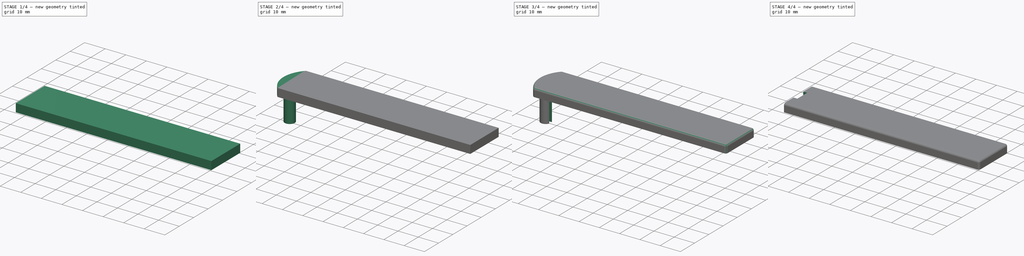
[diagram: build sequence overview — one tinted view per stage of 4, left to right]
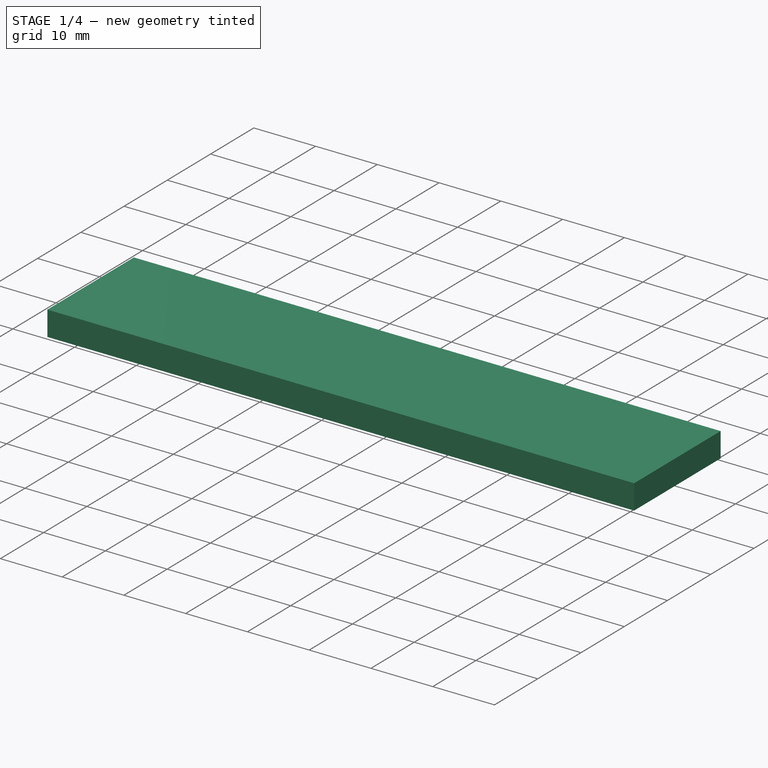
[diagram: stage 1 of 4 — iso view after this stage's code; geometry added in this stage tinted green]
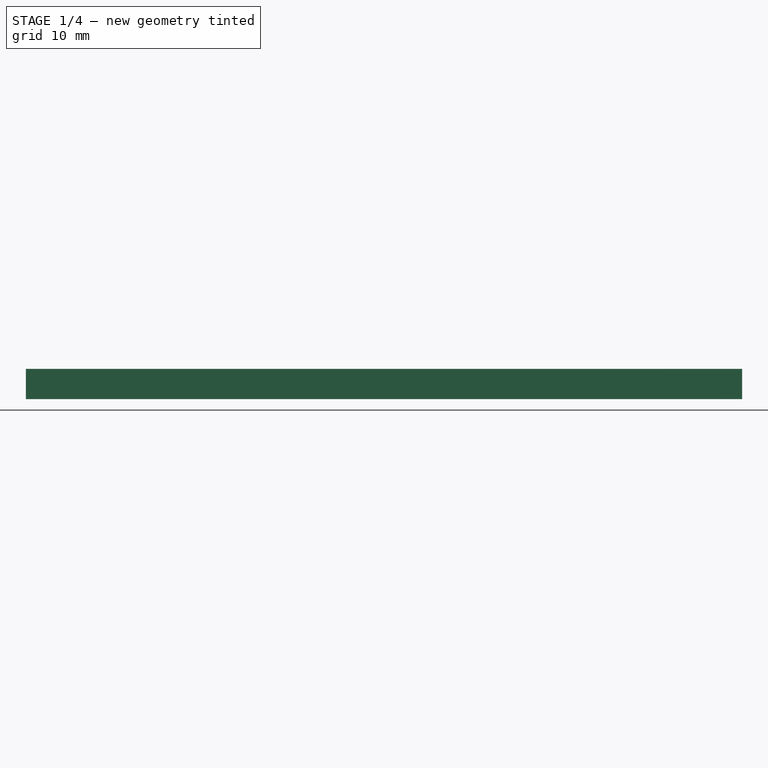
[diagram: stage 1 of 4 — front view after this stage's code; geometry added in this stage tinted green]
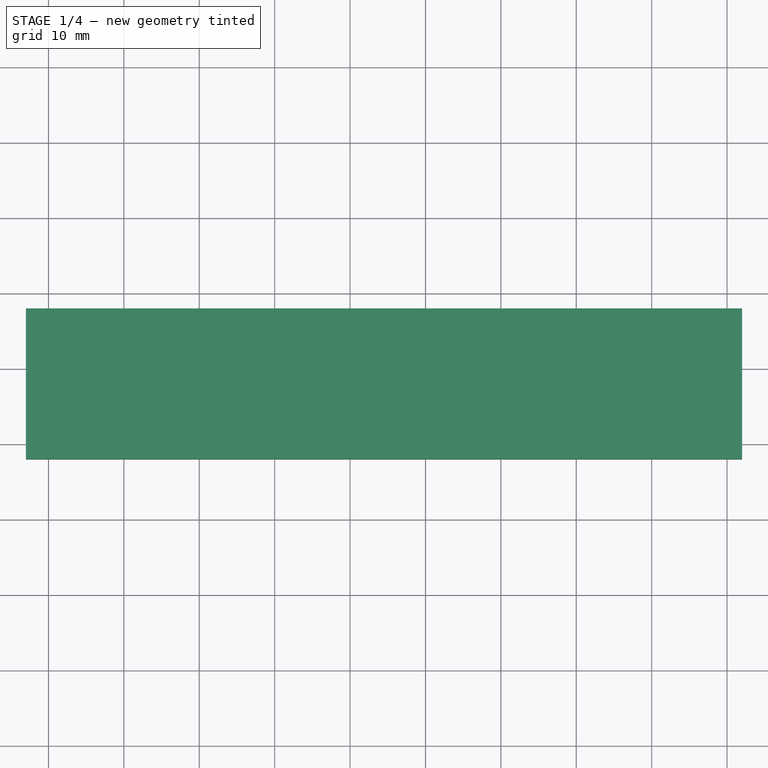
[diagram: stage 1 of 4 — top view after this stage's code; geometry added in this stage tinted green]
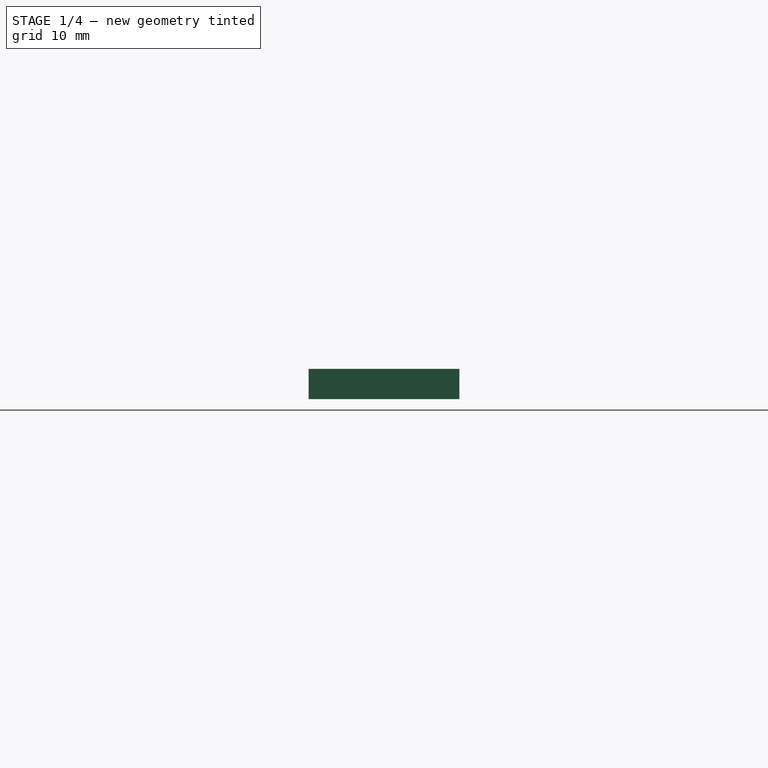
[diagram: stage 1 of 4 — right view after this stage's code; geometry added in this stage tinted green]
FCSTD DOCUMENT  (FreeCAD 0.18.1R)
Label: antenna_enclosure_1
License: All rights reserved
LicenseURL: http://en.wikipedia.org/wiki/All_rights_reserved
objects: Sketcher::SketchObject×7, PartDesign::Pad×4, PartDesign::Pocket×3, PartDesign::Fillet×2, PartDesign::Body×1
note: 24 computed .brp shape members not serialized (recipe doc carries the construction recipe); baked Part::Feature solids carry a one-line shape summary decoded from their .brp

FEATURE [Sketcher::SketchObject] Sketch
  MapMode = 5
  Support = -> [XY_Plane]
  sketch-geometry (8):
    g0: LineSegment StartX=-93 StartY=18 StartZ=0 EndX=2 EndY=18 EndZ=0
    g1: LineSegment StartX=2 StartY=18 StartZ=0 EndX=2 EndY=-2 EndZ=0
    g2: LineSegment StartX=2 StartY=-2 StartZ=0 EndX=-93 EndY=-2 EndZ=0
    g3: LineSegment StartX=-93 StartY=-2 StartZ=0 EndX=-93 EndY=18 EndZ=0
    g4: LineSegment StartX=-91 StartY=16 StartZ=0 EndX=0 EndY=16 EndZ=0
    g5: LineSegment StartX=0 StartY=16 StartZ=0 EndX=0 EndY=0 EndZ=0
    g6: LineSegment StartX=0 StartY=0 StartZ=0 EndX=-91 EndY=0 EndZ=0
    g7: LineSegment StartX=-91 StartY=0 StartZ=0 EndX=-91 EndY=16 EndZ=0
  constraints (23):
    c: Coincident(g0,g1)
    c: Coincident(g1,g2)
    c: Coincident(g2,g3)
    c: Coincident(g3,g0)
    c: Horizontal(g0)
    c: Horizontal(g2)
    c: Vertical(g1)
    c: Vertical(g3)
    c: Coincident(g4,g5)
    c: Coincident(g5,g6)
    c: Coincident(g6,g7)
    c: Coincident(g7,g4)
    c: Horizontal(g4)
    c: Horizontal(g6)
    c: Vertical(g5)
    c: Vertical(g7)
    c: Coincident(g5,g-1)
    c: Distance(g0) = 95
    c: Distance(g7) = 16
    c: DistanceX(g4,g0) = 2
    c: DistanceX(g2,g6) = 2
    c: DistanceY(g4,g0) = 2
    c: DistanceY(g2,g6) = 2
FEATURE [PartDesign::Pad] Pad
  Length = 2
  Length2 = 100
  Profile = -> Sketch
  Type = 0
FEATURE [Sketcher::SketchObject] Sketch001
  ExternalGeometry = -> [Pad]
  MapMode = 5
  Placement = pos=(0,0,2) rot=(0,0,1;0rad)
  Support = -> [Pad]
  sketch-geometry (4):
    g0: LineSegment StartX=-93 StartY=18 StartZ=0 EndX=2 EndY=18 EndZ=0
    g1: LineSegment StartX=2 StartY=18 StartZ=0 EndX=2 EndY=-2 EndZ=0
    g2: LineSegment StartX=2 StartY=-2 StartZ=0 EndX=-93 EndY=-2 EndZ=0
    g3: LineSegment StartX=-93 StartY=-2 StartZ=0 EndX=-93 EndY=18 EndZ=0
  constraints (10):
    c: Coincident(g0,g1)
    c: Coincident(g1,g2)
    c: Coincident(g2,g3)
    c: Coincident(g3,g0)
    c: Horizontal(g0)
    c: Horizontal(g2)
    c: Vertical(g1)
    c: Vertical(g3)
    c: Coincident(g0,g-6)
    c: Coincident(g1,g-5)
FEATURE [PartDesign::Pad] Pad001
  BaseFeature = -> Pad
  Length = 2
  Length2 = 100
  Profile = -> Sketch001
  Type = 0
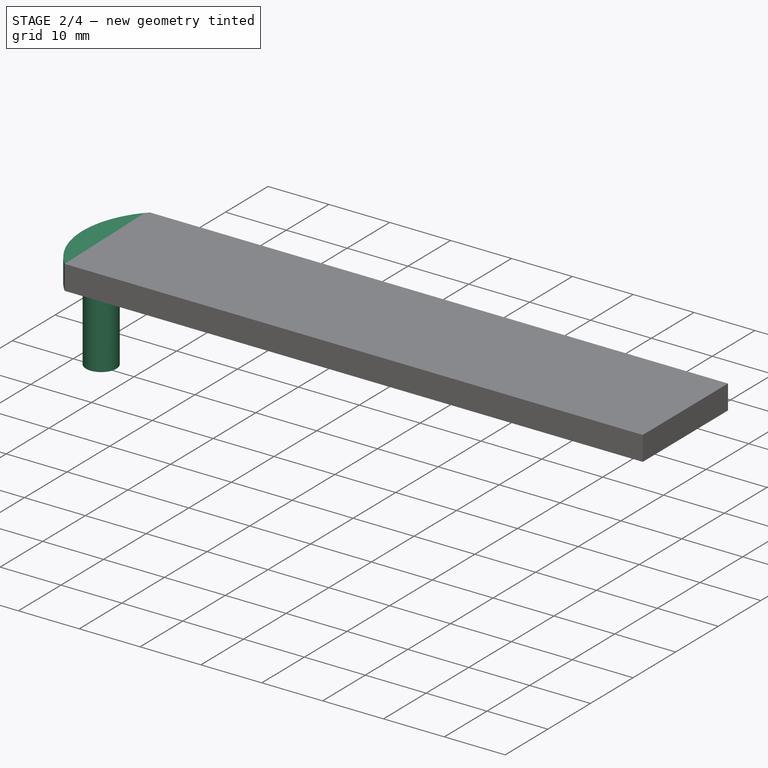
[diagram: stage 2 of 4 — iso view after this stage's code; geometry added in this stage tinted green]
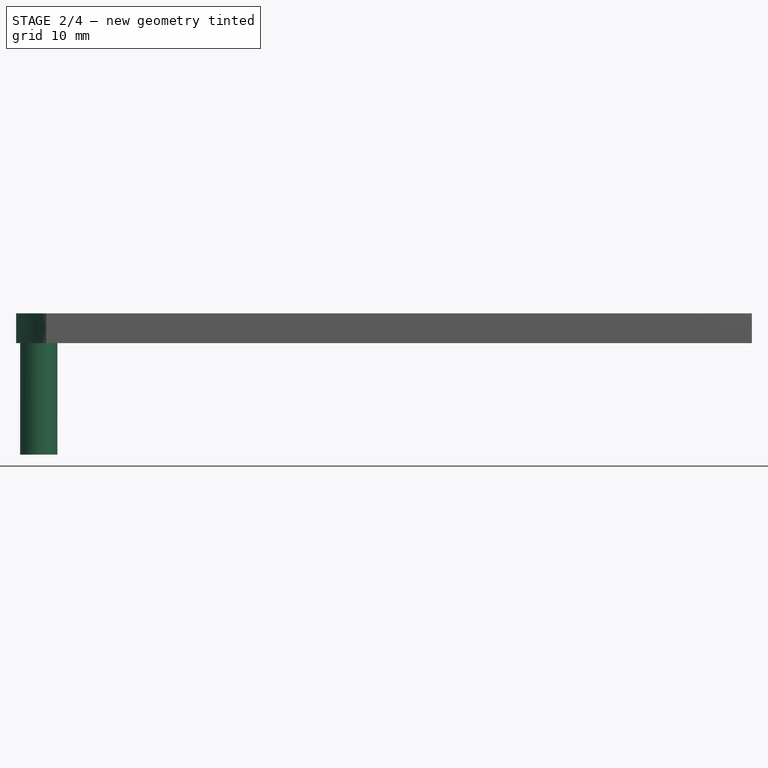
[diagram: stage 2 of 4 — front view after this stage's code; geometry added in this stage tinted green]
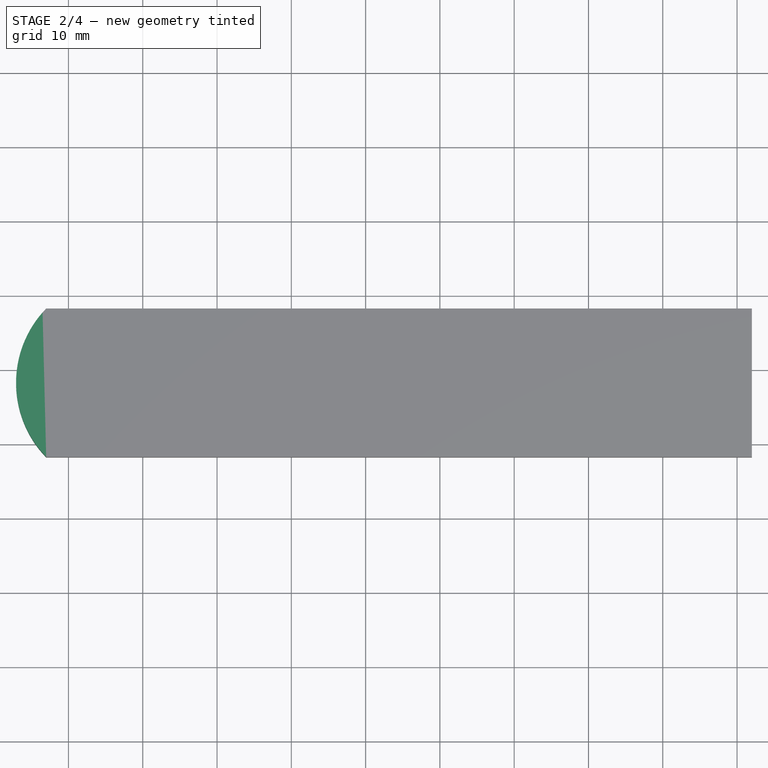
[diagram: stage 2 of 4 — top view after this stage's code; geometry added in this stage tinted green]
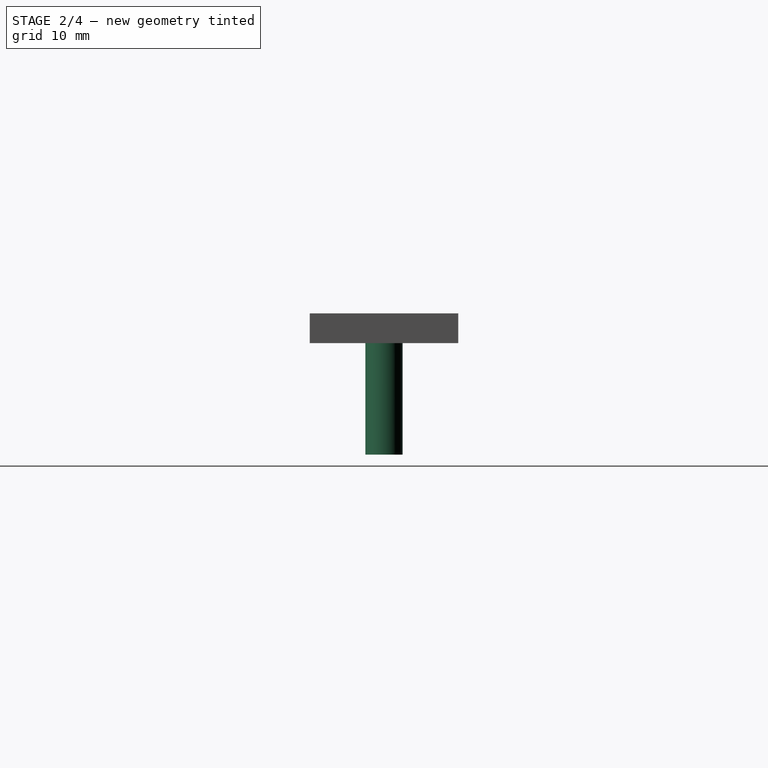
[diagram: stage 2 of 4 — right view after this stage's code; geometry added in this stage tinted green]
FEATURE [Sketcher::SketchObject] Sketch002
  ExternalGeometry = -> [Pad001]
  MapMode = 5
  Placement = pos=(0,0,4) rot=(0,0,1;0rad)
  Support = -> [Pad001]
  sketch-geometry (4):
    g0: Circle [constr] CenterX=-93 CenterY=7.93554 CenterZ=0 NormalX=0 NormalY=0 NormalZ=1 AngleXU=0 Radius=3
    g1: Circle [constr] CenterX=-93 CenterY=7.93554 CenterZ=0 NormalX=0 NormalY=0 NormalZ=1 AngleXU=0 Radius=1.25
    g2: LineSegment StartX=-93 StartY=18 StartZ=0 EndX=-93 EndY=-2 EndZ=0
    g3: ArcOfCircle CenterX=-82.7005 CenterY=8 CenterZ=0 NormalX=0 NormalY=0 NormalZ=1 AngleXU=0 Radius=14.3555 StartAngle=2.37095 EndAngle=3.91224
  constraints (6):
    c: Diameter(g0) = 6
    c: Diameter(g1) = 2.5
    c: Coincident(g2,g-4)
    c: Coincident(g2,g-5)
    c: Coincident(g3,g2)
    c: Coincident(g3,g2)
FEATURE [PartDesign::Pad] Pad002
  BaseFeature = -> Pad001
  Length = 4
  Length2 = 100
  Profile = -> Sketch002
  Reversed = true
  Type = 0
FEATURE [Sketcher::SketchObject] Sketch003
  ExternalGeometry = -> [Pad002]
  MapMode = 5
  Placement = pos=(0,0,0) rot=(1,0,0;3.14159rad)
  Support = -> [Pad002]
  sketch-geometry (2):
    g0: Circle CenterX=-94 CenterY=-8 CenterZ=0 NormalX=0 NormalY=0 NormalZ=1 AngleXU=0 Radius=1.25
    g1: Circle CenterX=-94 CenterY=-8 CenterZ=0 NormalX=0 NormalY=0 NormalZ=1 AngleXU=0 Radius=2.5
  constraints (5):
    c: Coincident(g1,g0)
    c: Diameter(g0) = 2.5
    c: Diameter(g1) = 5
    c: DistanceY(g0,g-3) = 10
    c: DistanceX(g0,g-3) = 1
FEATURE [PartDesign::Pad] Pad003
  BaseFeature = -> Pad002
  Length = 15
  Length2 = 100
  Profile = -> Sketch003
  Type = 0
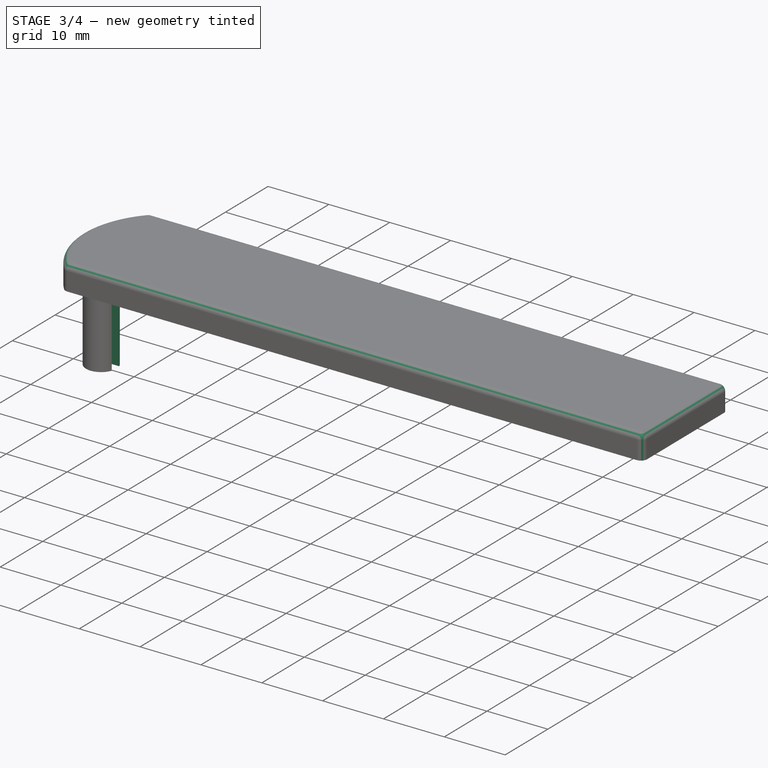
[diagram: stage 3 of 4 — iso view after this stage's code; geometry added in this stage tinted green]
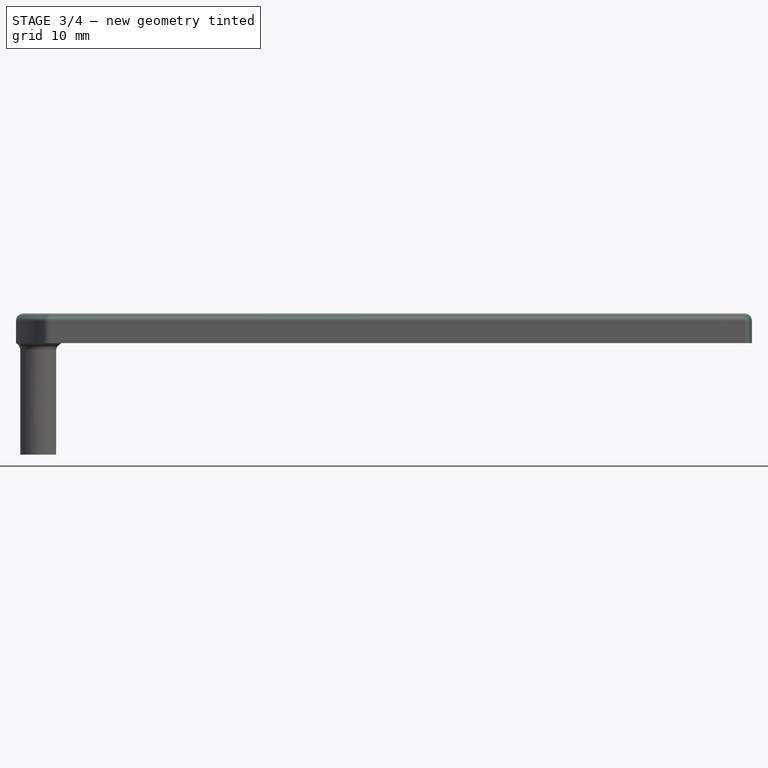
[diagram: stage 3 of 4 — front view after this stage's code; geometry added in this stage tinted green]
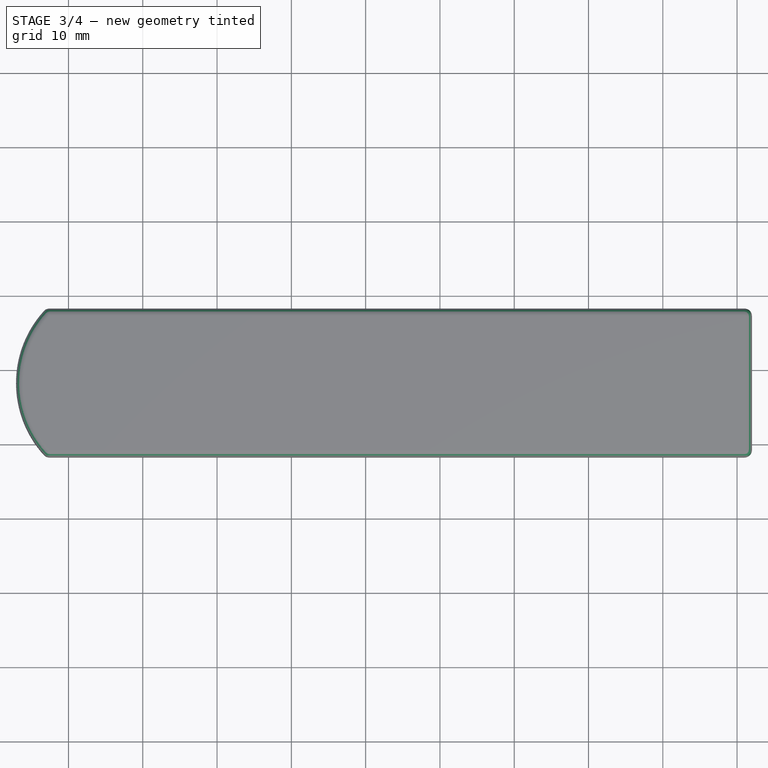
[diagram: stage 3 of 4 — top view after this stage's code; geometry added in this stage tinted green]
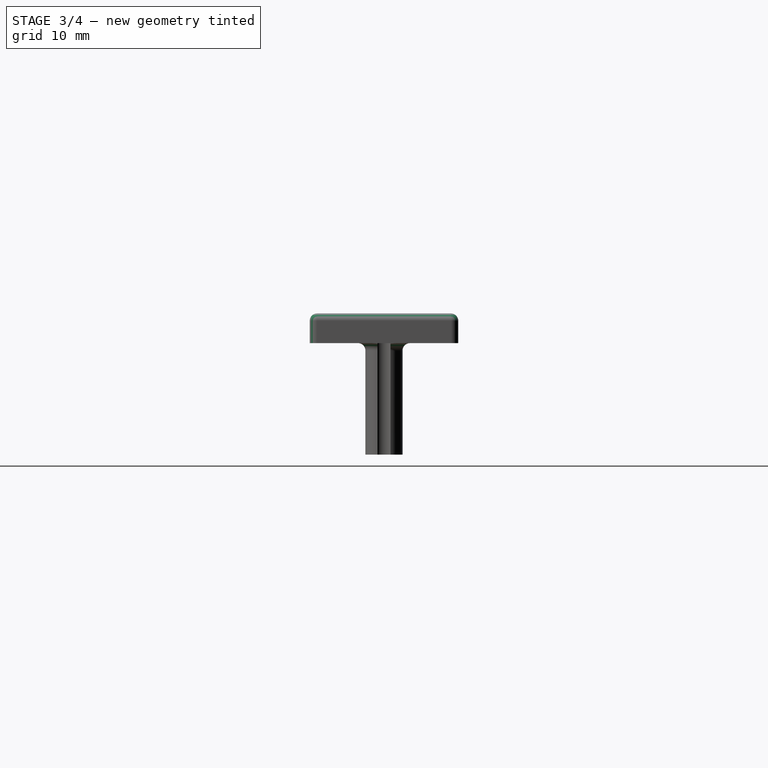
[diagram: stage 3 of 4 — right view after this stage's code; geometry added in this stage tinted green]
FEATURE [Sketcher::SketchObject] Sketch004
  ExternalGeometry = -> [Pad003]
  MapMode = 5
  Placement = pos=(0,0,0) rot=(1,0,0;3.14159rad)
  Support = -> [Pad003]
  expr: Constraints[6] = 10 - 1.75 / 2
  sketch-geometry (4):
    g0: LineSegment StartX=-94.8265 StartY=-8.875 StartZ=0 EndX=-80.9708 EndY=-8.875 EndZ=0
    g1: LineSegment StartX=-80.9708 StartY=-8.875 StartZ=0 EndX=-80.9708 EndY=-7.125 EndZ=0
    g2: LineSegment StartX=-80.9708 StartY=-7.125 StartZ=0 EndX=-94.8265 EndY=-7.125 EndZ=0
    g3: ArcOfCircle CenterX=-94.0347 CenterY=-8 CenterZ=0 NormalX=0 NormalY=0 NormalZ=1 AngleXU=0 Radius=1.18005 StartAngle=2.3063 EndAngle=3.97688
  constraints (9):
    c: Coincident(g0,g1)
    c: Coincident(g1,g2)
    c: Horizontal(g0)
    c: Horizontal(g2)
    c: Vertical(g1)
    c: Distance(g1) = 1.75
    c: DistanceY(g2,g-4) = 9.125
    c: Coincident(g3,g2)
    c: Coincident(g3,g0)
FEATURE [PartDesign::Pocket] Pocket
  BaseFeature = -> Pad003
  Length = 2.2
  Length2 = 100
  Midplane = true
  Profile = -> Sketch004
  Type = 4
FEATURE [PartDesign::Fillet] Fillet
  Base = -> Pocket [Edge31]
  BaseFeature = -> Pocket
  Radius = 1
FEATURE [PartDesign::Fillet] Fillet001
  Base = -> Fillet [Edge26,Edge8,Edge7,Edge5,Face6,Edge19,Edge45,Edge25]
  BaseFeature = -> Fillet
  Radius = 1
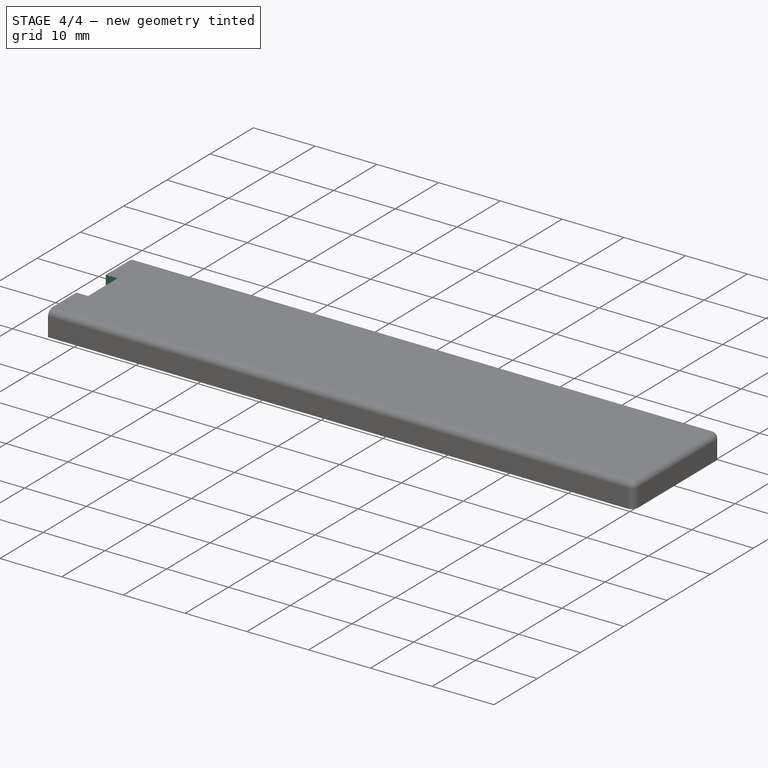
[diagram: stage 4 of 4 — iso view after this stage's code; geometry added in this stage tinted green]
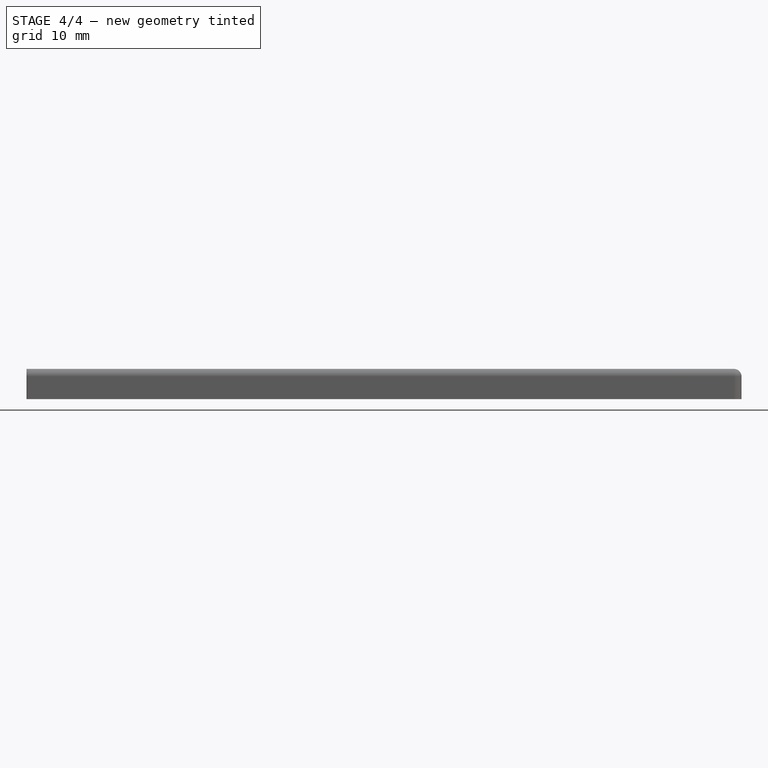
[diagram: stage 4 of 4 — front view after this stage's code; geometry added in this stage tinted green]
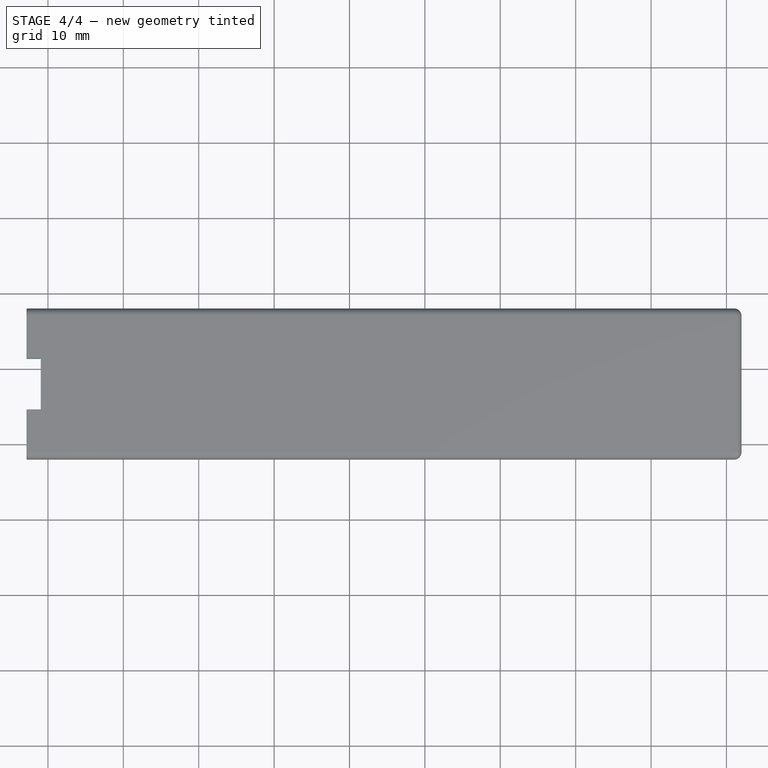
[diagram: stage 4 of 4 — top view after this stage's code; geometry added in this stage tinted green]
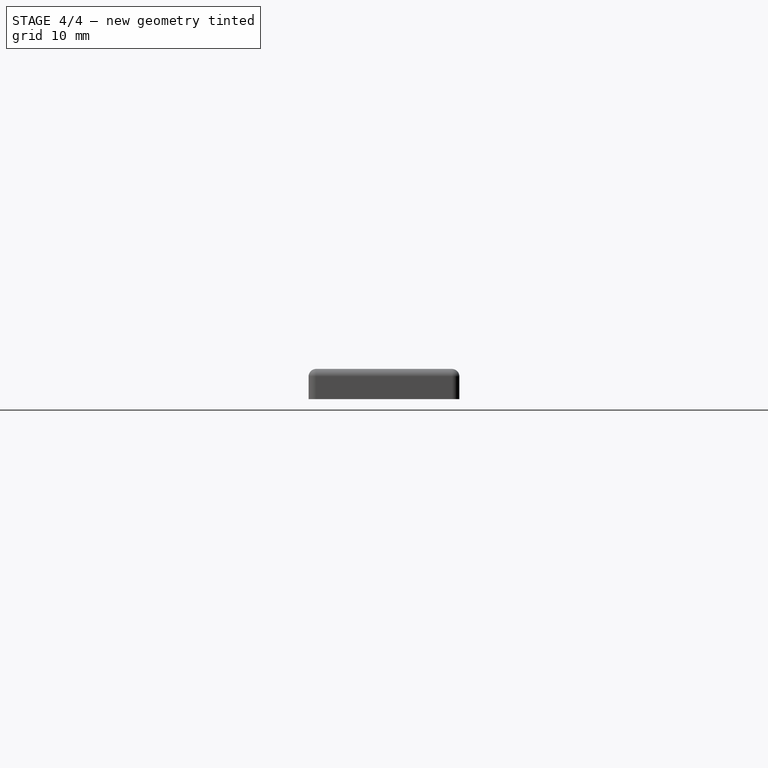
[diagram: stage 4 of 4 — right view after this stage's code; geometry added in this stage tinted green]
FEATURE [Sketcher::SketchObject] Sketch005
  ExternalGeometry = -> [Fillet001]
  MapMode = 5
  Placement = pos=(0,-2,0) rot=(1,0,0;1.5708rad)
  Support = -> [Fillet001]
  sketch-geometry (8):
    g0: LineSegment StartX=-98.7671 StartY=5.35785 StartZ=0 EndX=-92.8469 EndY=5.35785 EndZ=0
    g1: LineSegment StartX=-92.8469 StartY=5.35785 StartZ=0 EndX=-92.8469 EndY=0 EndZ=0
    g2: LineSegment StartX=-98.7671 StartY=0 StartZ=0 EndX=-98.7671 EndY=5.35785 EndZ=0
    g3: LineSegment StartX=-102.094 StartY=0 StartZ=0 EndX=-98.7671 EndY=0 EndZ=0
    g4: LineSegment StartX=-86.1368 StartY=0 StartZ=0 EndX=-86.1368 EndY=-22.7016 EndZ=0
    g5: LineSegment StartX=-86.1368 StartY=-22.7016 StartZ=0 EndX=-102.094 EndY=-22.7016 EndZ=0
    g6: LineSegment StartX=-102.094 StartY=-22.7016 StartZ=0 EndX=-102.094 EndY=0 EndZ=0
    g7: LineSegment StartX=-92.8469 StartY=0 StartZ=0 EndX=-86.1368 EndY=0 EndZ=0
  constraints (18):
    c: Coincident(g0,g1)
    c: Coincident(g2,g0)
    c: Horizontal(g0)
    c: Vertical(g1)
    c: Vertical(g2)
    c: Coincident(g7,g4)
    c: Coincident(g4,g5)
    c: Coincident(g5,g6)
    c: Coincident(g6,g3)
    c: Horizontal(g3)
    c: Horizontal(g5)
    c: Vertical(g4)
    c: Vertical(g6)
    c: DistanceY(g-3,g-3) = 0
    c: DistanceY(g7,g-3) = 0
    c: Coincident(g3,g2)
    c: Coincident(g7,g1)
    c: Tangent(g3,g7)
FEATURE [PartDesign::Pocket] Pocket001
  BaseFeature = -> Fillet001
  Length = 5
  Length2 = 100
  Profile = -> Sketch005
  Type = 1
FEATURE [Sketcher::SketchObject] Sketch006
  MapMode = 5
  Placement = pos=(0,0,0) rot=(1,0,0;3.14159rad)
  Support = -> [Pocket001]
  sketch-geometry (4):
    g0: LineSegment StartX=-95.3184 StartY=-4.59704 StartZ=0 EndX=-90.95 EndY=-4.59704 EndZ=0
    g1: LineSegment StartX=-90.95 StartY=-4.59704 StartZ=0 EndX=-90.95 EndY=-11.3727 EndZ=0
    g2: LineSegment StartX=-90.95 StartY=-11.3727 StartZ=0 EndX=-95.3184 EndY=-11.3727 EndZ=0
    g3: LineSegment StartX=-95.3184 StartY=-11.3727 StartZ=0 EndX=-95.3184 EndY=-4.59704 EndZ=0
  constraints (8):
    c: Coincident(g0,g1)
    c: Coincident(g1,g2)
    c: Coincident(g2,g3)
    c: Coincident(g3,g0)
    c: Horizontal(g0)
    c: Horizontal(g2)
    c: Vertical(g1)
    c: Vertical(g3)
FEATURE [PartDesign::Pocket] Pocket002
  BaseFeature = -> Pocket001
  Length = 2
  Length2 = 100
  Profile = -> Sketch006
  Type = 1
FEATURE [PartDesign::Body] Body
  Group = -> [Sketch,Pad,Sketch001,Pad001,Sketch002,Pad002,Sketch003,Pad003,Sketch004,Pocket,Fillet,Fillet001,Sketch005,Pocket001,Sketch006,Pocket002]
  Origin = -> Origin
  Tip = -> Pocket002
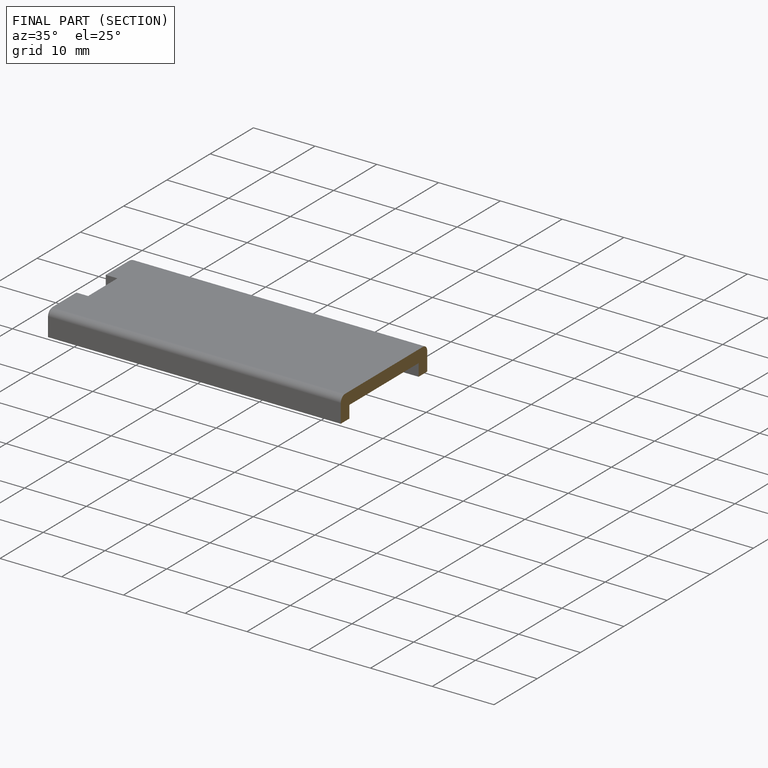
[diagram: finished part — half-section view (interior)]
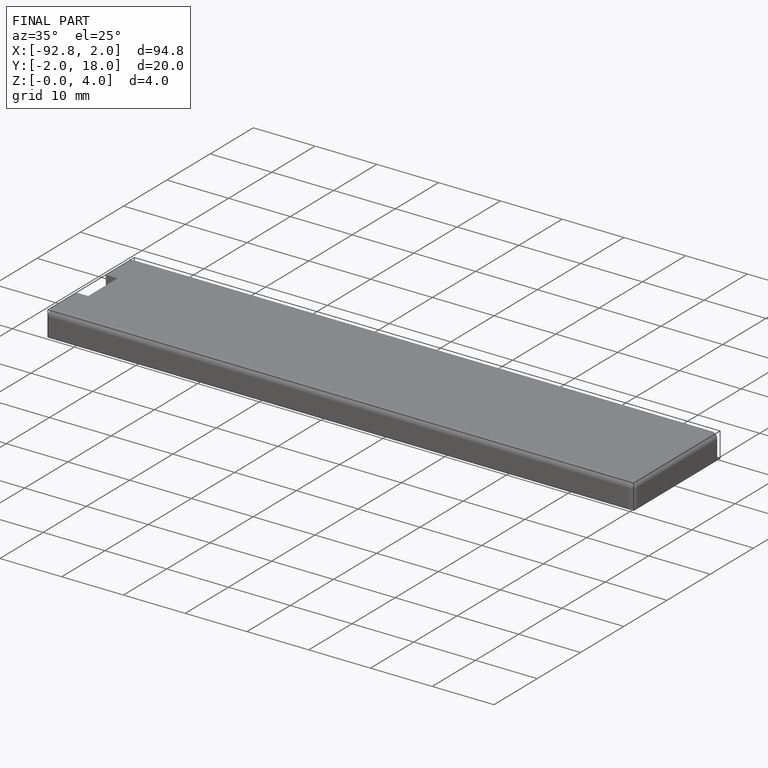
[diagram: finished part — iso view with bounding-box wireframe]
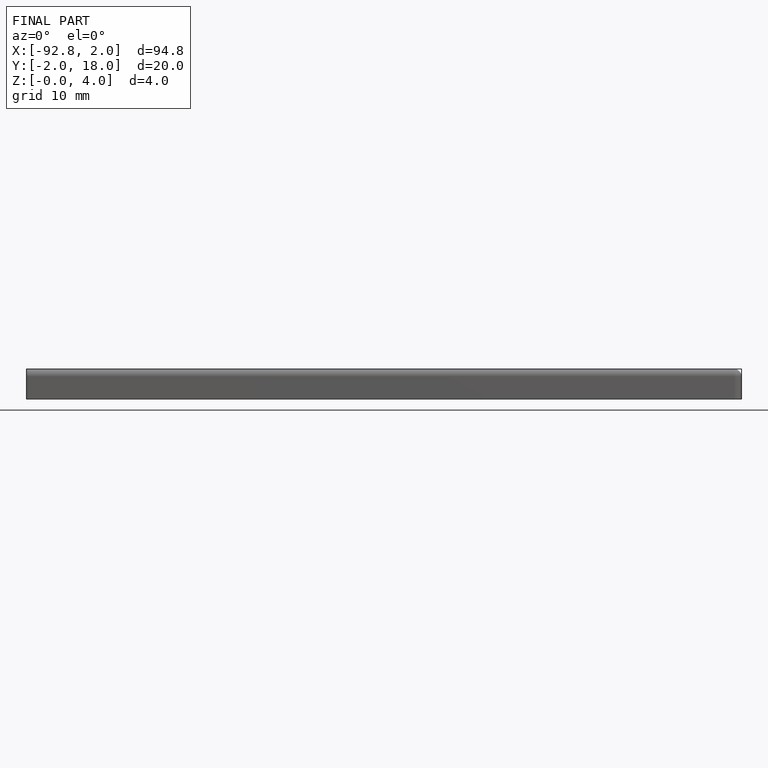
[diagram: finished part — front view with bounding-box wireframe]
